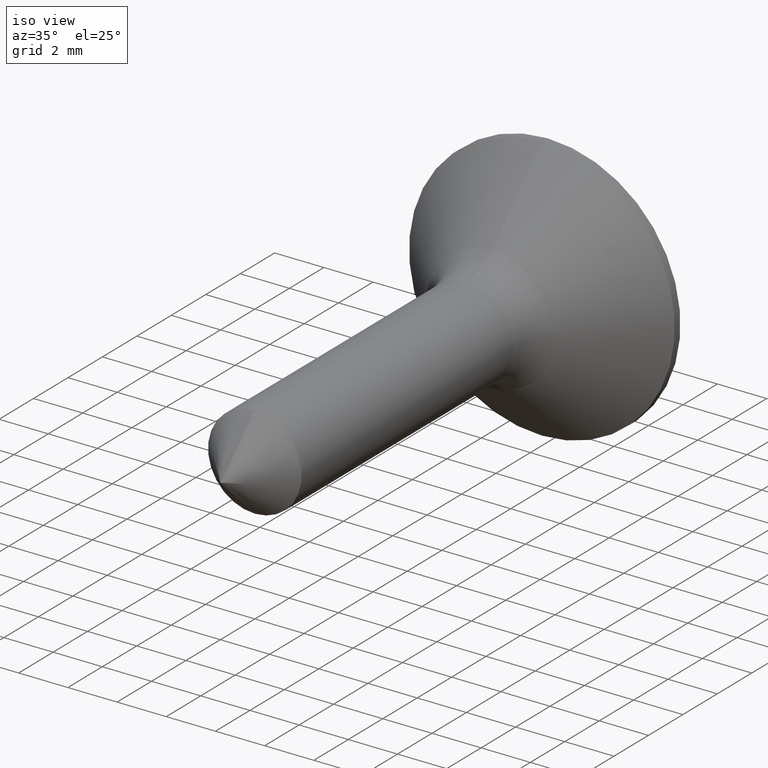
[diagram: clean part render]
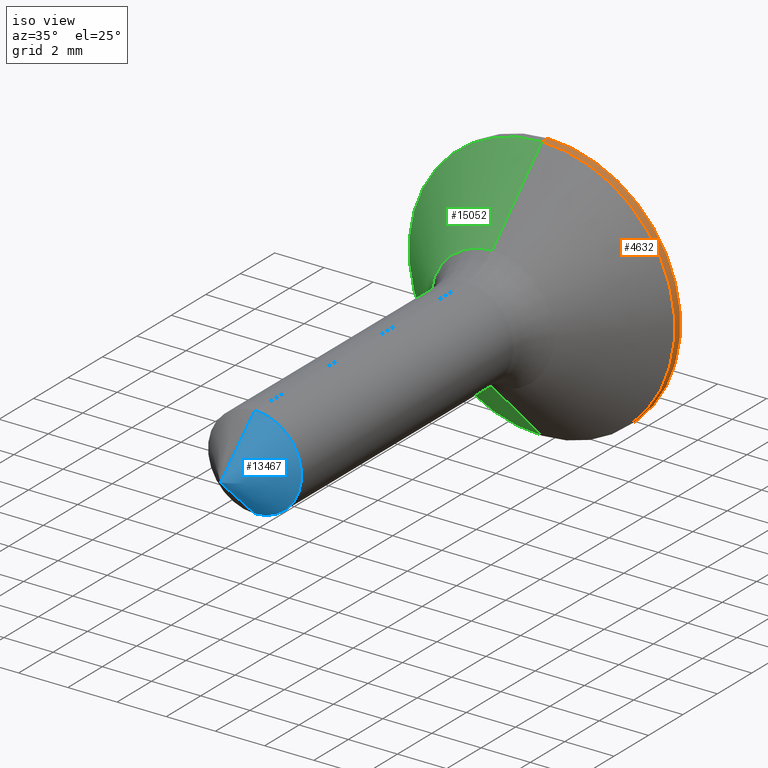
[diagram: same view with three faces highlighted in distinct colors, each labeled with its STEP entity id]
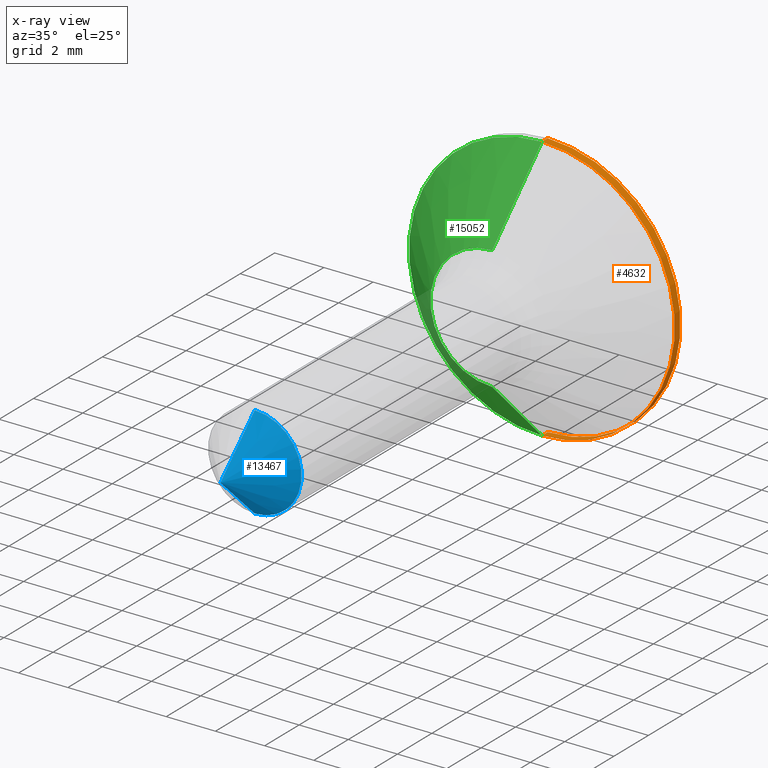
[diagram: x-ray of the same camera — body ghosted, the three highlighted faces saturated]
A machine part, iso view with three faces highlighted in distinct colors.
The next image is the same camera in x-ray (body ghosted, the three faces saturated) — at least one of them is partly hidden behind the body in this view.
Their STEP definitions:

[orange] entity #4632 — the highlighted cylindrical surface (partial cylindrical patch) has radius 5.4 mm, axis along (-0, -1, -0).
#633 = CARTESIAN_POINT ( 'NONE',  ( 0.000000000000000000, 0.000000000000000000, 0.000000000000000000 ) ) ;
#998 = VERTEX_POINT ( 'NONE', #8042 ) ;
#1388 = EDGE_CURVE ( 'NONE', #2922, #4695, #17032, .T. ) ;
#1449 = LINE ( 'NONE', #16115, #5400 ) ;
#2922 = VERTEX_POINT ( 'NONE', #16892 ) ;
#3018 = AXIS2_PLACEMENT_3D ( 'NONE', #15892, #3974, #7882 ) ;
#3214 = EDGE_CURVE ( 'NONE', #998, #4695, #14421, .T. ) ;
#3933 = CARTESIAN_POINT ( 'NONE',  ( 0.000000000000000000, 19.00000000000000000, -5.400000000000000355 ) ) ;
#3974 = DIRECTION ( 'NONE',  ( -0.000000000000000000, -1.000000000000000000, -0.000000000000000000 ) ) ;
#4353 = ORIENTED_EDGE ( 'NONE', *, *, #15072, .F. ) ;
#4478 = VECTOR ( 'NONE', #16329, 1000.000000000000000 ) ;
#4632 = ADVANCED_FACE ( 'NONE', ( #11069 ), #14998, .T. ) ;
#4695 = VERTEX_POINT ( 'NONE', #14114 ) ;
#4768 = ORIENTED_EDGE ( 'NONE', *, *, #3214, .T. ) ;
#5400 = VECTOR ( 'NONE', #7022, 1000.000000000000000 ) ;
#5477 = AXIS2_PLACEMENT_3D ( 'NONE', #633, #11168, #8603 ) ;
#6755 = CARTESIAN_POINT ( 'NONE',  ( 0.000000000000000000, 18.66999999999999815, 0.000000000000000000 ) ) ;
#7022 = DIRECTION ( 'NONE',  ( -0.000000000000000000, -1.000000000000000000, -0.000000000000000000 ) ) ;
#7882 = DIRECTION ( 'NONE',  ( 0.000000000000000000, 0.000000000000000000, -1.000000000000000000 ) ) ;
#8042 = CARTESIAN_POINT ( 'NONE',  ( 6.613092715395707467E-16, 19.00000000000000000, 5.400000000000000355 ) ) ;
#8603 = DIRECTION ( 'NONE',  ( 0.000000000000000000, 0.000000000000000000, -1.000000000000000000 ) ) ;
#8870 = ORIENTED_EDGE ( 'NONE', *, *, #14830, .T. ) ;
#10664 = AXIS2_PLACEMENT_3D ( 'NONE', #6755, #12087, #13485 ) ;
#11037 = ORIENTED_EDGE ( 'NONE', *, *, #1388, .F. ) ;
#11069 = FACE_OUTER_BOUND ( 'NONE', #14736, .T. ) ;
#11168 = DIRECTION ( 'NONE',  ( -0.000000000000000000, -1.000000000000000000, -0.000000000000000000 ) ) ;
#12087 = DIRECTION ( 'NONE',  ( -0.000000000000000000, -1.000000000000000000, -0.000000000000000000 ) ) ;
#12870 = CIRCLE ( 'NONE', #3018, 5.400000000000000355 ) ;
#13485 = DIRECTION ( 'NONE',  ( 0.000000000000000000, 0.000000000000000000, -1.000000000000000000 ) ) ;
#14114 = CARTESIAN_POINT ( 'NONE',  ( 0.000000000000000000, 18.66999999999999815, 5.400000000000000355 ) ) ;
#14421 = LINE ( 'NONE', #16207, #4478 ) ;
#14736 = EDGE_LOOP ( 'NONE', ( #8870, #4768, #11037, #4353 ) ) ;
#14830 = EDGE_CURVE ( 'NONE', #15796, #998, #12870, .T. ) ;
#14998 = CYLINDRICAL_SURFACE ( 'NONE', #5477, 5.400000000000000355 ) ;
#15072 = EDGE_CURVE ( 'NONE', #15796, #2922, #1449, .T. ) ;
#15796 = VERTEX_POINT ( 'NONE', #3933 ) ;
#15892 = CARTESIAN_POINT ( 'NONE',  ( 0.000000000000000000, 19.00000000000000000, 0.000000000000000000 ) ) ;
#16115 = CARTESIAN_POINT ( 'NONE',  ( 0.000000000000000000, 0.000000000000000000, -5.400000000000000355 ) ) ;
#16207 = CARTESIAN_POINT ( 'NONE',  ( 6.613092715395707467E-16, 0.000000000000000000, 5.400000000000000355 ) ) ;
#16329 = DIRECTION ( 'NONE',  ( -0.000000000000000000, -1.000000000000000000, -0.000000000000000000 ) ) ;
#16892 = CARTESIAN_POINT ( 'NONE',  ( 6.613092715395708453E-16, 18.66999999999999815, -5.400000000000000355 ) ) ;
#17032 = CIRCLE ( 'NONE', #10664, 5.400000000000000355 ) ;

[blue] entity #13467 — the highlighted conical surface has half-angle 43.531 deg.
#120 = CARTESIAN_POINT ( 'NONE',  ( 2.326828918379972844E-16, 2.000000000000000000, -1.900000000000001688 ) ) ;
#515 = FACE_OUTER_BOUND ( 'NONE', #12579, .T. ) ;
#1034 = VERTEX_POINT ( 'NONE', #120 ) ;
#1417 = LINE ( 'NONE', #12757, #15106 ) ;
#1760 = CARTESIAN_POINT ( 'NONE',  ( 0.000000000000000000, 0.000000000000000000, 0.000000000000000000 ) ) ;
#2485 = CARTESIAN_POINT ( 'NONE',  ( 0.000000000000000000, 0.000000000000000000, 0.000000000000000000 ) ) ;
#3784 = CARTESIAN_POINT ( 'NONE',  ( 0.000000000000000000, 2.000000000000000000, 0.000000000000000000 ) ) ;
#4520 = LINE ( 'NONE', #2485, #16525 ) ;
#4835 = DIRECTION ( 'NONE',  ( 0.000000000000000000, 0.7249994335944133228, 0.6887494619146934394 ) ) ;
#4922 = CARTESIAN_POINT ( 'NONE',  ( 0.000000000000000000, 1000.000000000000000, 0.000000000000000000 ) ) ;
#5098 = DIRECTION ( 'NONE',  ( 8.434748239482910320E-17, 0.7249994335944133228, -0.6887494619146934394 ) ) ;
#5124 = VERTEX_POINT ( 'NONE', #1760 ) ;
#5840 = EDGE_CURVE ( 'NONE', #1034, #13227, #12295, .T. ) ;
#6702 = CONICAL_SURFACE ( 'NONE', #16340, 950.0000000000009095, 0.7597627548757712734 ) ;
#7705 = EDGE_CURVE ( 'NONE', #5124, #1034, #4520, .T. ) ;
#8750 = ORIENTED_EDGE ( 'NONE', *, *, #7705, .T. ) ;
#12262 = CARTESIAN_POINT ( 'NONE',  ( 0.000000000000000000, 2.000000000000000000, 1.900000000000001688 ) ) ;
#12295 = CIRCLE ( 'NONE', #16931, 1.900000000000001910 ) ;
#12579 = EDGE_LOOP ( 'NONE', ( #16791, #8750, #14433 ) ) ;
#12757 = CARTESIAN_POINT ( 'NONE',  ( 0.000000000000000000, 0.000000000000000000, 0.000000000000000000 ) ) ;
#12971 = DIRECTION ( 'NONE',  ( -0.000000000000000000, -1.000000000000000000, -0.000000000000000000 ) ) ;
#13079 = DIRECTION ( 'NONE',  ( 0.000000000000000000, 0.000000000000000000, -1.000000000000000000 ) ) ;
#13128 = DIRECTION ( 'NONE',  ( 0.000000000000000000, 1.000000000000000000, 0.000000000000000000 ) ) ;
#13227 = VERTEX_POINT ( 'NONE', #12262 ) ;
#13467 = ADVANCED_FACE ( 'NONE', ( #515 ), #6702, .T. ) ;
#14293 = DIRECTION ( 'NONE',  ( 0.000000000000000000, 0.000000000000000000, 1.000000000000000000 ) ) ;
#14433 = ORIENTED_EDGE ( 'NONE', *, *, #5840, .T. ) ;
#15106 = VECTOR ( 'NONE', #4835, 1000.000000000000114 ) ;
#16340 = AXIS2_PLACEMENT_3D ( 'NONE', #4922, #13128, #14293 ) ;
#16525 = VECTOR ( 'NONE', #5098, 1000.000000000000114 ) ;
#16791 = ORIENTED_EDGE ( 'NONE', *, *, #17180, .F. ) ;
#16931 = AXIS2_PLACEMENT_3D ( 'NONE', #3784, #12971, #13079 ) ;
#17180 = EDGE_CURVE ( 'NONE', #5124, #13227, #1417, .T. ) ;

[green] entity #15052 — the highlighted conical surface has half-angle 45 deg.
#169 = EDGE_CURVE ( 'NONE', #7999, #4781, #3907, .T. ) ;
#198 = DIRECTION ( 'NONE',  ( 0.000000000000000000, 0.000000000000000000, -1.000000000000000000 ) ) ;
#2688 = AXIS2_PLACEMENT_3D ( 'NONE', #12112, #5520, #4248 ) ;
#2922 = VERTEX_POINT ( 'NONE', #16892 ) ;
#3653 = VECTOR ( 'NONE', #12479, 1000.000000000000114 ) ;
#3907 = CIRCLE ( 'NONE', #7777, 2.515075759508248243 ) ;
#3981 = ORIENTED_EDGE ( 'NONE', *, *, #14923, .T. ) ;
#3998 = EDGE_LOOP ( 'NONE', ( #6946, #4426, #13732, #3981 ) ) ;
#4248 = DIRECTION ( 'NONE',  ( 0.000000000000000000, 0.000000000000000000, 1.000000000000000000 ) ) ;
#4426 = ORIENTED_EDGE ( 'NONE', *, *, #169, .F. ) ;
#4695 = VERTEX_POINT ( 'NONE', #14114 ) ;
#4781 = VERTEX_POINT ( 'NONE', #7779 ) ;
#5520 = DIRECTION ( 'NONE',  ( 0.000000000000000000, 1.000000000000000000, 0.000000000000000000 ) ) ;
#5834 = CONICAL_SURFACE ( 'NONE', #2688, 2.515075759508248243, 0.7853981633974440602 ) ;
#6185 = EDGE_CURVE ( 'NONE', #4781, #2922, #16213, .T. ) ;
#6743 = DIRECTION ( 'NONE',  ( -0.000000000000000000, -1.000000000000000000, -0.000000000000000000 ) ) ;
#6946 = ORIENTED_EDGE ( 'NONE', *, *, #6185, .F. ) ;
#7777 = AXIS2_PLACEMENT_3D ( 'NONE', #13414, #6743, #16076 ) ;
#7779 = CARTESIAN_POINT ( 'NONE',  ( 0.000000000000000000, 15.78507575950822250, -2.515075759508246467 ) ) ;
#7999 = VERTEX_POINT ( 'NONE', #9883 ) ;
#8594 = CARTESIAN_POINT ( 'NONE',  ( 3.080079478494874439E-16, 15.78507575950822250, -2.515075759508248243 ) ) ;
#8723 = CIRCLE ( 'NONE', #12464, 5.400000000000000355 ) ;
#9883 = CARTESIAN_POINT ( 'NONE',  ( 3.080079478494871973E-16, 15.78507575950822250, 2.515075759508246467 ) ) ;
#11096 = LINE ( 'NONE', #11207, #3653 ) ;
#11207 = CARTESIAN_POINT ( 'NONE',  ( 0.000000000000000000, 15.78507575950822250, 2.515075759508248243 ) ) ;
#12054 = DIRECTION ( 'NONE',  ( -0.000000000000000000, -1.000000000000000000, -0.000000000000000000 ) ) ;
#12112 = CARTESIAN_POINT ( 'NONE',  ( 0.000000000000000000, 15.78507575950822250, 0.000000000000000000 ) ) ;
#12131 = EDGE_CURVE ( 'NONE', #7999, #4695, #11096, .T. ) ;
#12244 = FACE_OUTER_BOUND ( 'NONE', #3998, .T. ) ;
#12464 = AXIS2_PLACEMENT_3D ( 'NONE', #13285, #12054, #198 ) ;
#12479 = DIRECTION ( 'NONE',  ( 0.000000000000000000, 0.7071067811865505703, 0.7071067811865444641 ) ) ;
#13285 = CARTESIAN_POINT ( 'NONE',  ( 0.000000000000000000, 18.66999999999999815, 0.000000000000000000 ) ) ;
#13414 = CARTESIAN_POINT ( 'NONE',  ( 0.000000000000000000, 15.78507575950822250, 0.000000000000000000 ) ) ;
#13732 = ORIENTED_EDGE ( 'NONE', *, *, #12131, .T. ) ;
#14114 = CARTESIAN_POINT ( 'NONE',  ( 0.000000000000000000, 18.66999999999999815, 5.400000000000000355 ) ) ;
#14388 = DIRECTION ( 'NONE',  ( 8.659560562354897113E-17, 0.7071067811865505703, -0.7071067811865444641 ) ) ;
#14923 = EDGE_CURVE ( 'NONE', #4695, #2922, #8723, .T. ) ;
#15052 = ADVANCED_FACE ( 'NONE', ( #12244 ), #5834, .T. ) ;
#16076 = DIRECTION ( 'NONE',  ( 0.000000000000000000, 0.000000000000000000, -1.000000000000000000 ) ) ;
#16213 = LINE ( 'NONE', #8594, #16437 ) ;
#16437 = VECTOR ( 'NONE', #14388, 1000.000000000000114 ) ;
#16892 = CARTESIAN_POINT ( 'NONE',  ( 6.613092715395708453E-16, 18.66999999999999815, -5.400000000000000355 ) ) ;